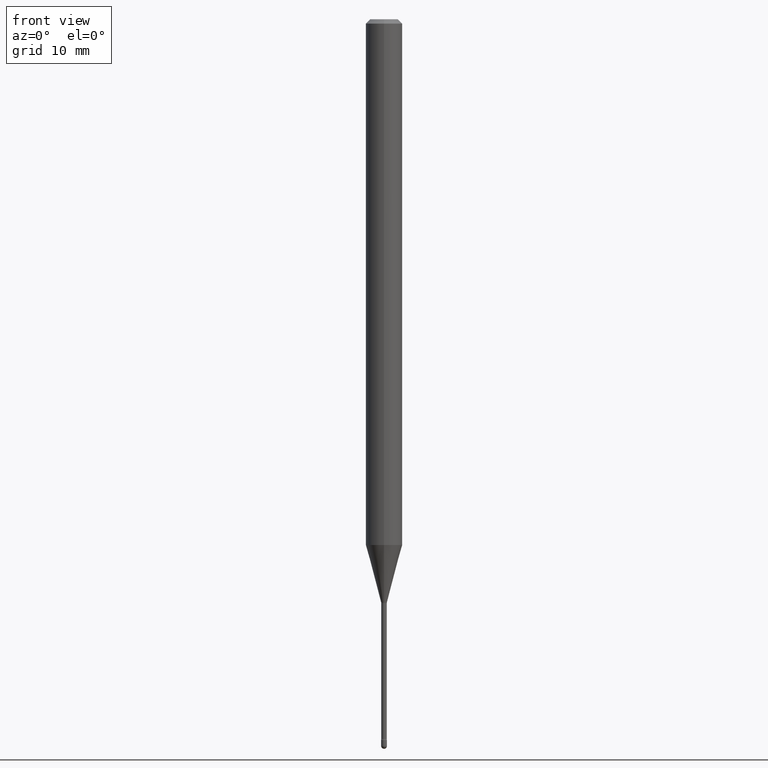
[diagram: clean part render]
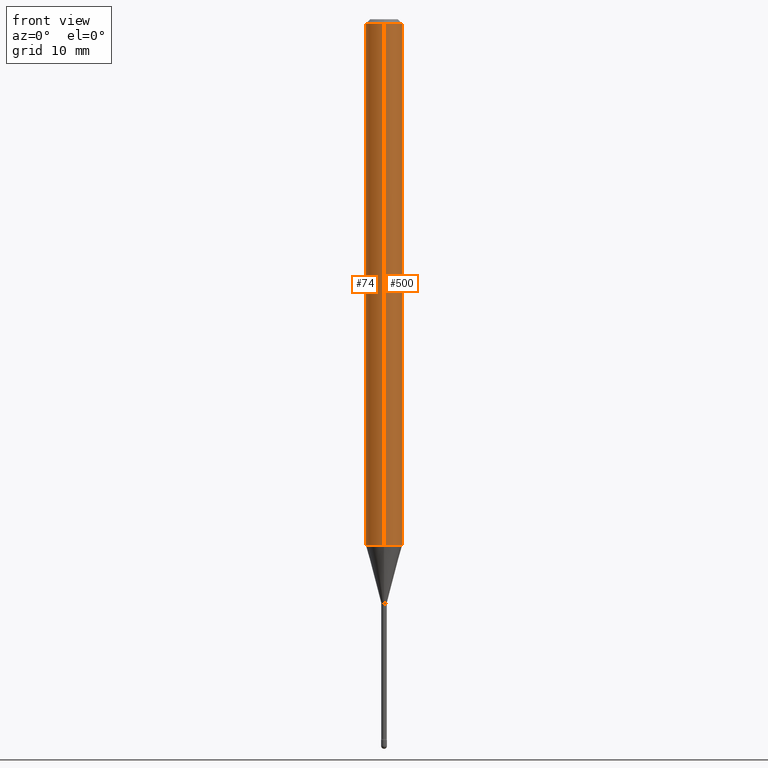
[diagram: same view with one multi-face feature highlighted, each face labeled with its STEP entity id]
A machine part, front view. The highlighted faces form ONE feature: a constant-radius fillet chain: 2 tangent blend faces with common blend radius 1.5875 mm. The faces share edges in the B-rep.
Their STEP definitions:
[1] entity #500 (Cylinder):
#11 = CARTESIAN_POINT ( 'NONE',  ( -4.364351673553912750E-16, -0.06250000000000005551, -0.01499999999999986587 ) ) ;
#24 = AXIS2_PLACEMENT_3D ( 'NONE', #396, #150, #275 ) ;
#37 = CARTESIAN_POINT ( 'NONE',  ( 4.440892098501069896E-16, 0.06249999999999995143, -0.01500000000000030129 ) ) ;
#39 = VECTOR ( 'NONE', #109, 39.37007874015748143 ) ;
#42 = VERTEX_POINT ( 'NONE', #80 ) ;
#66 = CARTESIAN_POINT ( 'NONE',  ( 4.440892098500625669E-16, 0.06250000000000000000, 2.598499189754181247E-16 ) ) ;
#80 = CARTESIAN_POINT ( 'NONE',  ( 4.440892098501064966E-16, 0.06249999999999370642, -1.801828102118093300 ) ) ;
#93 = CIRCLE ( 'NONE', #534, 0.06250000000000000000 ) ;
#109 = DIRECTION ( 'NONE',  ( -2.445402929047840449E-29, 3.491575678653247411E-15, 1.000000000000000000 ) ) ;
#150 = DIRECTION ( 'NONE',  ( -2.445402929047840730E-29, 3.491575678653247017E-15, 1.000000000000000000 ) ) ;
#160 = VECTOR ( 'NONE', #332, 39.37007874015748143 ) ;
#164 = FACE_OUTER_BOUND ( 'NONE', #559, .T. ) ;
#169 = CARTESIAN_POINT ( 'NONE',  ( -4.364351673553916201E-16, -0.06250000000000000000, 6.962968788070740511E-16 ) ) ;
#180 = CYLINDRICAL_SURFACE ( 'NONE', #282, 0.06250000000000000000 ) ;
#204 = EDGE_CURVE ( 'NONE', #210, #295, #552, .T. ) ;
#210 = VERTEX_POINT ( 'NONE', #347 ) ;
#218 = EDGE_CURVE ( 'NONE', #295, #461, #292, .T. ) ;
#236 = ORIENTED_EDGE ( 'NONE', *, *, #429, .T. ) ;
#275 = DIRECTION ( 'NONE',  ( -6.982962677686265922E-15, -1.000000000000000000, 3.483106191921935554E-15 ) ) ;
#282 = AXIS2_PLACEMENT_3D ( 'NONE', #384, #431, #558 ) ;
#287 = DIRECTION ( 'NONE',  ( -2.445402929047840730E-29, 3.491575678653247017E-15, 1.000000000000000000 ) ) ;
#290 = DIRECTION ( 'NONE',  ( -6.982962677686265922E-15, -1.000000000000000000, 4.370956789862821150E-15 ) ) ;
#292 = CIRCLE ( 'NONE', #24, 0.06250000000000000000 ) ;
#295 = VERTEX_POINT ( 'NONE', #11 ) ;
#332 = DIRECTION ( 'NONE',  ( -2.445402929047840449E-29, 3.491575678653247411E-15, 1.000000000000000000 ) ) ;
#347 = CARTESIAN_POINT ( 'NONE',  ( -4.364351673553476411E-16, -0.06250000000000630052, -1.801828102118092856 ) ) ;
#375 = ORIENTED_EDGE ( 'NONE', *, *, #204, .F. ) ;
#384 = CARTESIAN_POINT ( 'NONE',  ( -1.169113584055446105E-44, 1.669184350826100908E-30, 4.780733988912460139E-16 ) ) ;
#396 = CARTESIAN_POINT ( 'NONE',  ( 3.668104393571781536E-31, -5.237363517979899540E-17, -0.01500000000000008271 ) ) ;
#400 = EDGE_CURVE ( 'NONE', #210, #42, #93, .T. ) ;
#429 = EDGE_CURVE ( 'NONE', #42, #461, #509, .T. ) ;
#431 = DIRECTION ( 'NONE',  ( -2.445402929047840730E-29, 3.491575678653247017E-15, 1.000000000000000000 ) ) ;
#451 = CARTESIAN_POINT ( 'NONE',  ( 4.406195718560296677E-29, -6.291219178469473223E-15, -1.801828102118093078 ) ) ;
#461 = VERTEX_POINT ( 'NONE', #37 ) ;
#478 = ORIENTED_EDGE ( 'NONE', *, *, #400, .T. ) ;
#500 = ADVANCED_FACE ( 'NONE', ( #164 ), #180, .T. ) ;
#509 = LINE ( 'NONE', #66, #39 ) ;
#520 = ORIENTED_EDGE ( 'NONE', *, *, #218, .F. ) ;
#534 = AXIS2_PLACEMENT_3D ( 'NONE', #451, #287, #290 ) ;
#552 = LINE ( 'NONE', #169, #160 ) ;
#558 = DIRECTION ( 'NONE',  ( -6.982962677686265922E-15, -1.000000000000000000, 3.491575678653247805E-15 ) ) ;
#559 = EDGE_LOOP ( 'NONE', ( #478, #236, #520, #375 ) ) ;
[2] entity #74 (Cylinder):
#11 = CARTESIAN_POINT ( 'NONE',  ( -4.364351673553912750E-16, -0.06250000000000005551, -0.01499999999999986587 ) ) ;
#37 = CARTESIAN_POINT ( 'NONE',  ( 4.440892098501069896E-16, 0.06249999999999995143, -0.01500000000000030129 ) ) ;
#39 = VECTOR ( 'NONE', #109, 39.37007874015748143 ) ;
#42 = VERTEX_POINT ( 'NONE', #80 ) ;
#66 = CARTESIAN_POINT ( 'NONE',  ( 4.440892098500625669E-16, 0.06250000000000000000, 2.598499189754181247E-16 ) ) ;
#74 = ADVANCED_FACE ( 'NONE', ( #320 ), #254, .T. ) ;
#77 = EDGE_LOOP ( 'NONE', ( #508, #382, #481, #352 ) ) ;
#80 = CARTESIAN_POINT ( 'NONE',  ( 4.440892098501064966E-16, 0.06249999999999370642, -1.801828102118093300 ) ) ;
#84 = EDGE_CURVE ( 'NONE', #42, #210, #334, .T. ) ;
#98 = AXIS2_PLACEMENT_3D ( 'NONE', #383, #516, #138 ) ;
#109 = DIRECTION ( 'NONE',  ( -2.445402929047840449E-29, 3.491575678653247411E-15, 1.000000000000000000 ) ) ;
#114 = DIRECTION ( 'NONE',  ( -2.445402929047840730E-29, 3.491575678653247017E-15, 1.000000000000000000 ) ) ;
#138 = DIRECTION ( 'NONE',  ( -6.982962677686265922E-15, -1.000000000000000000, 3.483106191921935554E-15 ) ) ;
#160 = VECTOR ( 'NONE', #332, 39.37007874015748143 ) ;
#169 = CARTESIAN_POINT ( 'NONE',  ( -4.364351673553916201E-16, -0.06250000000000000000, 6.962968788070740511E-16 ) ) ;
#200 = CIRCLE ( 'NONE', #98, 0.06250000000000000000 ) ;
#204 = EDGE_CURVE ( 'NONE', #210, #295, #552, .T. ) ;
#210 = VERTEX_POINT ( 'NONE', #347 ) ;
#254 = CYLINDRICAL_SURFACE ( 'NONE', #565, 0.06250000000000000000 ) ;
#261 = EDGE_CURVE ( 'NONE', #461, #295, #200, .T. ) ;
#295 = VERTEX_POINT ( 'NONE', #11 ) ;
#316 = AXIS2_PLACEMENT_3D ( 'NONE', #490, #114, #339 ) ;
#320 = FACE_OUTER_BOUND ( 'NONE', #77, .T. ) ;
#328 = CARTESIAN_POINT ( 'NONE',  ( -1.169113584055446105E-44, 1.669184350826100908E-30, 4.780733988912460139E-16 ) ) ;
#332 = DIRECTION ( 'NONE',  ( -2.445402929047840449E-29, 3.491575678653247411E-15, 1.000000000000000000 ) ) ;
#334 = CIRCLE ( 'NONE', #316, 0.06250000000000000000 ) ;
#339 = DIRECTION ( 'NONE',  ( -6.982962677686265922E-15, -1.000000000000000000, 4.370956789862821150E-15 ) ) ;
#347 = CARTESIAN_POINT ( 'NONE',  ( -4.364351673553476411E-16, -0.06250000000000630052, -1.801828102118092856 ) ) ;
#352 = ORIENTED_EDGE ( 'NONE', *, *, #261, .F. ) ;
#382 = ORIENTED_EDGE ( 'NONE', *, *, #84, .T. ) ;
#383 = CARTESIAN_POINT ( 'NONE',  ( 3.668104393571781536E-31, -5.237363517979899540E-17, -0.01500000000000008271 ) ) ;
#422 = DIRECTION ( 'NONE',  ( -6.982962677686265922E-15, -1.000000000000000000, 3.491575678653247805E-15 ) ) ;
#429 = EDGE_CURVE ( 'NONE', #42, #461, #509, .T. ) ;
#461 = VERTEX_POINT ( 'NONE', #37 ) ;
#481 = ORIENTED_EDGE ( 'NONE', *, *, #204, .T. ) ;
#490 = CARTESIAN_POINT ( 'NONE',  ( 4.406195718560296677E-29, -6.291219178469473223E-15, -1.801828102118093078 ) ) ;
#494 = DIRECTION ( 'NONE',  ( -2.445402929047840730E-29, 3.491575678653247017E-15, 1.000000000000000000 ) ) ;
#508 = ORIENTED_EDGE ( 'NONE', *, *, #429, .F. ) ;
#509 = LINE ( 'NONE', #66, #39 ) ;
#516 = DIRECTION ( 'NONE',  ( -2.445402929047840730E-29, 3.491575678653247017E-15, 1.000000000000000000 ) ) ;
#552 = LINE ( 'NONE', #169, #160 ) ;
#565 = AXIS2_PLACEMENT_3D ( 'NONE', #328, #494, #422 ) ;